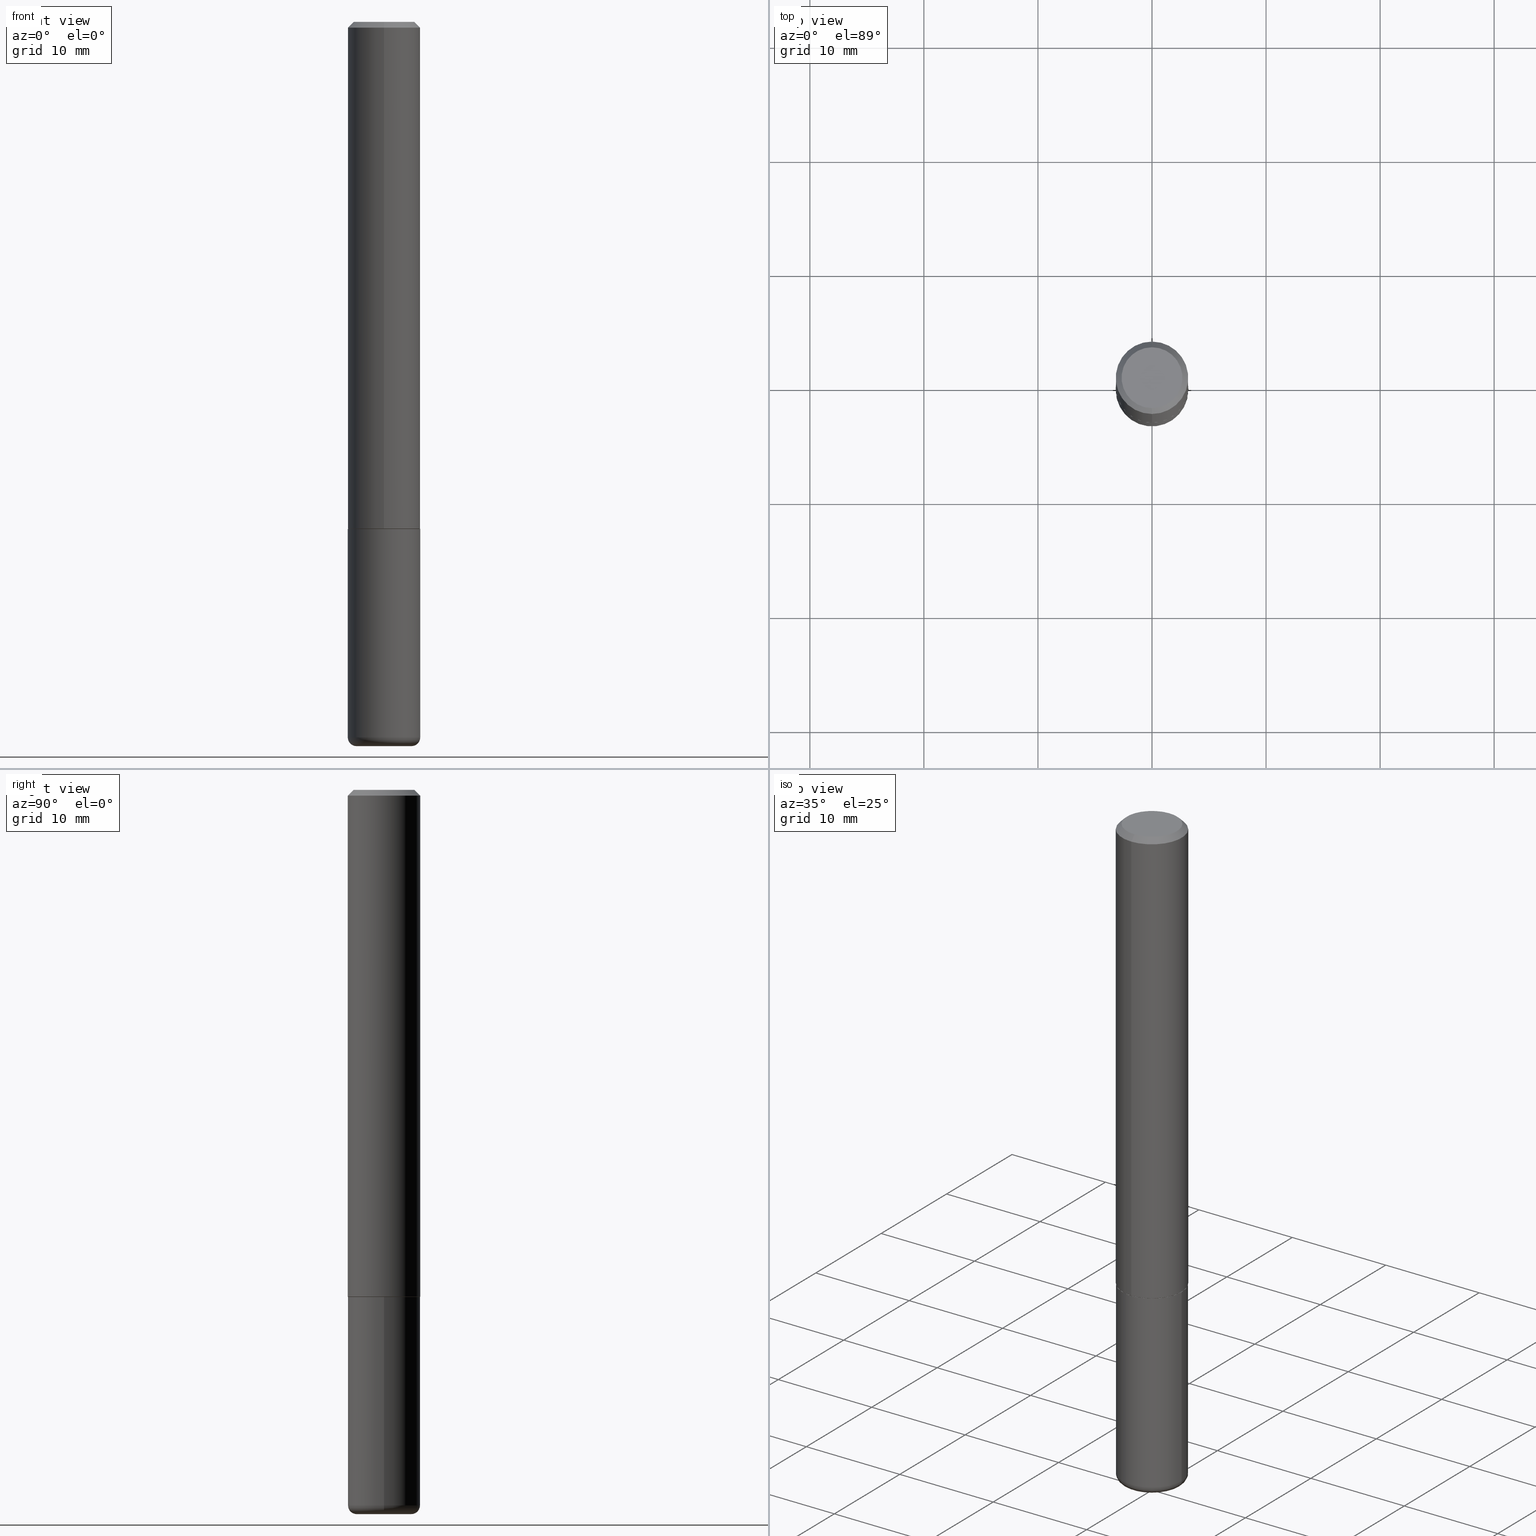
[diagram: canonical four-view strip — front | top / right | iso, engineering-drawing reading convention]
A machine part, canonical four-view strip (front | top / right | iso — engineering-drawing reading convention). The complete STEP part file that produces these views, byte-faithful:
ISO-10303-21;
HEADER;
FILE_DESCRIPTION (( 'STEP AP203' ),
    '1' );
FILE_NAME ('38223.STEP',
    '2024-03-02T18:48:16',
    ( '' ),
    ( '' ),
    'SwSTEP 2.0',
    'SolidWorks 2023',
    '' );
FILE_SCHEMA (( 'CONFIG_CONTROL_DESIGN' ));
ENDSEC;

DATA;
#1 = ADVANCED_FACE ( 'NONE', ( #26 ), #150, .T. ) ;
#2 = CARTESIAN_POINT ( 'NONE',  ( 4.275790926014379252E-29, -6.108511248481041332E-15, -1.749000000000000110 ) ) ;
#3 = DIRECTION ( 'NONE',  ( -2.444706075479919143E-29, 3.492573612624952424E-15, 1.000000000000000000 ) ) ;
#4 = CIRCLE ( 'NONE', #410, 0.1050000000000000794 ) ;
#5 = CC_DESIGN_APPROVAL ( #38, ( #148 ) ) ;
#6 = ORIENTED_EDGE ( 'NONE', *, *, #414, .F. ) ;
#7 = DIRECTION ( 'NONE',  ( -2.445468806185136597E-29, 3.491481338843145583E-15, 1.000000000000000000 ) ) ;
#8 = EDGE_CURVE ( 'NONE', #170, #129, #279, .T. ) ;
#9 = DIRECTION ( 'NONE',  ( 6.982962677686265922E-15, 1.000000000000000000, -3.483106191921935554E-15 ) ) ;
#10 = ORIENTED_EDGE ( 'NONE', *, *, #92, .F. ) ;
#11 = CARTESIAN_POINT ( 'NONE',  ( 8.728703347107837333E-16, 0.1249999999999999306, -0.02000000000000046185 ) ) ;
#12 = ORIENTED_EDGE ( 'NONE', *, *, #227, .F. ) ;
#13 = TOROIDAL_SURFACE ( 'NONE', #300, 0.09499999999999998723, 0.03000000000000025216 ) ;
#14 = AXIS2_PLACEMENT_3D ( 'NONE', #80, #274, #110 ) ;
#15 = COORDINATED_UNIVERSAL_TIME_OFFSET ( 5, 0, .BEHIND. ) ;
#16 = DIRECTION ( 'NONE',  ( 5.024295867788490741E-15, 0.7071067811866103003, 0.7071067811864847341 ) ) ;
#17 = EDGE_CURVE ( 'NONE', #200, #292, #107, .T. ) ;
#18 = VERTEX_POINT ( 'NONE', #120 ) ;
#19 = DIRECTION ( 'NONE',  ( 1.000000000000000000, -6.982962677686262766E-15, 0.000000000000000000 ) ) ;
#20 = DIRECTION ( 'NONE',  ( -2.445468806185136597E-29, 3.491481338843145583E-15, 1.000000000000000000 ) ) ;
#21 = DIRECTION ( 'NONE',  ( -2.444706075479919424E-29, 3.492573612624952424E-15, 1.000000000000000000 ) ) ;
#22 = CARTESIAN_POINT ( 'NONE',  ( -3.926534606047510986E-29, -2.310685068218294639E-14, -2.500000000000000000 ) ) ;
#23 = AXIS2_PLACEMENT_3D ( 'NONE', #82, #209, #103 ) ;
#24 = CIRCLE ( 'NONE', #146, 0.03000000000000024175 ) ;
#25 = DIRECTION ( 'NONE',  ( 6.982962677686265922E-15, 1.000000000000000000, -3.483106191921935554E-15 ) ) ;
#26 = FACE_OUTER_BOUND ( 'NONE', #306, .T. ) ;
#27 = APPROVAL_ROLE ( '' ) ;
#28 = CARTESIAN_POINT ( 'NONE',  ( -0.09499999999999998723, -7.948943307970475008E-15, -2.470000000000000195 ) ) ;
#29 =( NAMED_UNIT ( * ) PLANE_ANGLE_UNIT ( ) SI_UNIT ( $, .RADIAN. ) );
#30 = CC_DESIGN_PERSON_AND_ORGANIZATION_ASSIGNMENT ( #385, #286, ( #275 ) ) ;
#31 = AXIS2_PLACEMENT_3D ( 'NONE', #371, #20, #272 ) ;
#32 = APPLICATION_PROTOCOL_DEFINITION ( 'international standard', 'config_control_design', 1994, #318 ) ;
#33 = LOCAL_TIME ( 13, 48, 16.00000000000000000, #15 ) ;
#34 = DIRECTION ( 'NONE',  ( 0.000000000000000000, 0.000000000000000000, 1.000000000000000000 ) ) ;
#35 = CLOSED_SHELL ( 'NONE', ( #290, #144, #320, #205, #343, #377, #403, #255 ) ) ;
#36 = ORIENTED_EDGE ( 'NONE', *, *, #227, .T. ) ;
#37 = APPROVAL_STATUS ( 'not_yet_approved' ) ;
#38 = APPROVAL ( #37, 'UNSPECIFIED' ) ;
#39 = ORIENTED_EDGE ( 'NONE', *, *, #243, .F. ) ;
#40 = CALENDAR_DATE ( 2024, 2, 3 ) ;
#41 = CARTESIAN_POINT ( 'NONE',  ( -0.1250000000000000000, -6.478847205258913284E-15, -1.750000000000000222 ) ) ;
#42 = AXIS2_PLACEMENT_3D ( 'NONE', #345, #34, #415 ) ;
#43 = CC_DESIGN_SECURITY_CLASSIFICATION ( #148, ( #275 ) ) ;
#44 = EDGE_CURVE ( 'NONE', #296, #18, #56, .T. ) ;
#45 = ORIENTED_EDGE ( 'NONE', *, *, #17, .T. ) ;
#46 = EDGE_LOOP ( 'NONE', ( #10, #113, #76, #136 ) ) ;
#47 = EDGE_LOOP ( 'NONE', ( #338, #52, #12, #78 ) ) ;
#48 = FACE_OUTER_BOUND ( 'NONE', #247, .T. ) ;
#49 = FACE_OUTER_BOUND ( 'NONE', #47, .T. ) ;
#50 = AXIS2_PLACEMENT_3D ( 'NONE', #224, #254, #222 ) ;
#51 = PLANE ( 'NONE',  #356 ) ;
#52 = ORIENTED_EDGE ( 'NONE', *, *, #92, .T. ) ;
#53 = LINE ( 'NONE', #344, #339 ) ;
#54 = ORIENTED_EDGE ( 'NONE', *, *, #307, .T. ) ;
#55 = CARTESIAN_POINT ( 'NONE',  ( 4.889412150959845398E-31, -6.985147225249911602E-17, -0.02000000000000002470 ) ) ;
#56 = CIRCLE ( 'NONE', #31, 0.1250000000000000000 ) ;
#57 = MECHANICAL_CONTEXT ( 'NONE', #81, 'mechanical' ) ;
#58 = DIRECTION ( 'NONE',  ( -2.444706075479919424E-29, 3.492573612624952424E-15, 1.000000000000000000 ) ) ;
#59 = DIRECTION ( 'NONE',  ( -2.444706075479919424E-29, 3.492573612624952424E-15, 1.000000000000000000 ) ) ;
#60 = FACE_OUTER_BOUND ( 'NONE', #347, .T. ) ;
#61 = AXIS2_PLACEMENT_3D ( 'NONE', #241, #178, #207 ) ;
#62 = APPROVAL_ROLE ( '' ) ;
#63 = FACE_OUTER_BOUND ( 'NONE', #85, .T. ) ;
#64 = CARTESIAN_POINT ( 'NONE',  ( -8.658873720330540358E-16, -0.1240000000000061053, -1.749999999999999556 ) ) ;
#65 = LOCAL_TIME ( 13, 48, 16.00000000000000000, #186 ) ;
#66 = FACE_OUTER_BOUND ( 'NONE', #46, .T. ) ;
#67 = ORIENTED_EDGE ( 'NONE', *, *, #358, .F. ) ;
#68 =( NAMED_UNIT ( * ) SI_UNIT ( $, .STERADIAN. ) SOLID_ANGLE_UNIT ( ) );
#69 = CARTESIAN_POINT ( 'NONE',  ( 6.113672015462842613E-29, -8.728703347107866520E-15, -2.500000000000000444 ) ) ;
#70 = EDGE_LOOP ( 'NONE', ( #211, #39, #362, #396 ) ) ;
#71 = DIRECTION ( 'NONE',  ( 1.000000000000000000, -6.982962677686273021E-15, 0.000000000000000000 ) ) ;
#72 = PERSON_AND_ORGANIZATION ( #206, #223 ) ;
#73 = FACE_OUTER_BOUND ( 'NONE', #70, .T. ) ;
#74 = CC_DESIGN_PERSON_AND_ORGANIZATION_ASSIGNMENT ( #253, #125, ( #400 ) ) ;
#75 = CIRCLE ( 'NONE', #124, 0.1250000000000000000 ) ;
#76 = ORIENTED_EDGE ( 'NONE', *, *, #171, .T. ) ;
#77 = DIRECTION ( 'NONE',  ( -6.982962677686265133E-15, -1.000000000000000000, 4.370956789862812472E-15 ) ) ;
#78 = ORIENTED_EDGE ( 'NONE', *, *, #171, .F. ) ;
#79 = DIRECTION ( 'NONE',  ( 7.105427357601001859E-15, 1.000000000000000000, -3.491481338843145583E-15 ) ) ;
#80 = CARTESIAN_POINT ( 'NONE',  ( 0.000000000000000000, 0.000000000000000000, 0.000000000000000000 ) ) ;
#81 = APPLICATION_CONTEXT ( 'configuration controlled 3d designs of mechanical parts and assemblies' ) ;
#82 = CARTESIAN_POINT ( 'NONE',  ( 6.040307951277287977E-29, -8.623958906942569995E-15, -2.470000000000000195 ) ) ;
#83 = CIRCLE ( 'NONE', #260, 0.1250000000000000000 ) ;
#84 = CYLINDRICAL_SURFACE ( 'NONE', #216, 0.1250000000000000000 ) ;
#85 = EDGE_LOOP ( 'NONE', ( #232, #45, #54, #386 ) ) ;
#86 = CARTESIAN_POINT ( 'NONE',  ( -8.658873720330540358E-16, -0.1240000000000061053, -1.749999999999999556 ) ) ;
#87 = DIRECTION ( 'NONE',  ( -6.982962677686265922E-15, -1.000000000000000000, 3.483106191921935554E-15 ) ) ;
#88 = DIRECTION ( 'NONE',  ( -4.851104656540959542E-15, -0.7071067811865493491, -0.7071067811865457964 ) ) ;
#89 = AXIS2_PLACEMENT_3D ( 'NONE', #236, #355, #195 ) ;
#90 = APPROVAL_PERSON_ORGANIZATION ( #220, #218, #62 ) ;
#91 = PERSON_AND_ORGANIZATION ( #206, #223 ) ;
#92 = EDGE_CURVE ( 'NONE', #401, #296, #24, .T. ) ;
#93 = DATE_AND_TIME ( #283, #270 ) ;
#94 = CALENDAR_DATE ( 2024, 2, 3 ) ;
#95 = DIRECTION ( 'NONE',  ( -2.444706075479919424E-29, 3.492573612624952424E-15, 1.000000000000000000 ) ) ;
#96 = AXIS2_PLACEMENT_3D ( 'NONE', #314, #95, #219 ) ;
#97 = DIRECTION ( 'NONE',  ( -2.445468806185136877E-29, 3.491481338843145188E-15, 1.000000000000000000 ) ) ;
#98 = ADVANCED_FACE ( 'NONE', ( #49 ), #181, .T. ) ;
#99 = ADVANCED_BREP_SHAPE_REPRESENTATION ( '38223', ( #245, #248, #42 ), #309 ) ;
#100 = DIRECTION ( 'NONE',  ( 1.000000000000000000, -6.982962677686276966E-15, 0.000000000000000000 ) ) ;
#101 = CC_DESIGN_APPROVAL ( #225, ( #400 ) ) ;
#102 = UNCERTAINTY_MEASURE_WITH_UNIT (LENGTH_MEASURE( 1.000000000000000082E-05 ), #325, 'distance_accuracy_value', 'NONE');
#103 = DIRECTION ( 'NONE',  ( 1.000000000000000000, -6.982962677686273021E-15, 4.883557194083115143E-29 ) ) ;
#104 = VERTEX_POINT ( 'NONE', #242 ) ;
#105 = CARTESIAN_POINT ( 'NONE',  ( 8.881784197001479121E-16, 0.1249999999999941019, -1.749000000000000554 ) ) ;
#106 = ORIENTED_EDGE ( 'NONE', *, *, #366, .F. ) ;
#107 = CIRCLE ( 'NONE', #158, 0.1250000000000002498 ) ;
#108 = CONICAL_SURFACE ( 'NONE', #174, 0.1239999999999999991, 0.7853981633975336552 ) ;
#109 = ORIENTED_EDGE ( 'NONE', *, *, #382, .T. ) ;
#110 = DIRECTION ( 'NONE',  ( 1.000000000000000000, -6.982962677686266711E-15, 4.876176775795935793E-29 ) ) ;
#111 = CC_DESIGN_DATE_AND_TIME_ASSIGNMENT ( #289, #262, ( #148 ) ) ;
#112 = ORIENTED_EDGE ( 'NONE', *, *, #277, .F. ) ;
#113 = ORIENTED_EDGE ( 'NONE', *, *, #118, .T. ) ;
#114 = PLANE ( 'NONE',  #61 ) ;
#115 = DIRECTION ( 'NONE',  ( -1.000000000000000000, 6.982962677686265922E-15, -4.876176775795935793E-29 ) ) ;
#116 = FACE_OUTER_BOUND ( 'NONE', #163, .T. ) ;
#117 = AXIS2_PLACEMENT_3D ( 'NONE', #409, #349, #217 ) ;
#118 = EDGE_CURVE ( 'NONE', #401, #137, #259, .T. ) ;
#119 = LINE ( 'NONE', #304, #316 ) ;
#120 = CARTESIAN_POINT ( 'NONE',  ( 0.1250000000000001110, -9.496829241653354912E-15, -2.470000000000000195 ) ) ;
#121 = DIRECTION ( 'NONE',  ( -2.445468806185136597E-29, 3.491481338843145583E-15, 1.000000000000000000 ) ) ;
#122 = DATE_AND_TIME ( #94, #282 ) ;
#123 = VECTOR ( 'NONE', #3, 39.37007874015748143 ) ;
#124 = AXIS2_PLACEMENT_3D ( 'NONE', #249, #298, #173 ) ;
#125 = PERSON_AND_ORGANIZATION_ROLE ( 'creator' ) ;
#126 = DIRECTION ( 'NONE',  ( -6.982962677686265922E-15, -1.000000000000000000, 3.492573612624952424E-15 ) ) ;
#127 = DESIGN_CONTEXT ( 'detailed design', #318, 'design' ) ;
#128 = CIRCLE ( 'NONE', #363, 0.1250000000000002498 ) ;
#129 = VERTEX_POINT ( 'NONE', #164 ) ;
#130 = CYLINDRICAL_SURFACE ( 'NONE', #89, 0.1250000000000001110 ) ;
#131 = CARTESIAN_POINT ( 'NONE',  ( 0.09499999999999998723, -9.287340361322766595E-15, -2.470000000000000195 ) ) ;
#132 = EDGE_CURVE ( 'NONE', #292, #200, #128, .T. ) ;
#133 = CIRCLE ( 'NONE', #208, 0.1250000000000000000 ) ;
#134 = ORIENTED_EDGE ( 'NONE', *, *, #240, .F. ) ;
#135 = ORIENTED_EDGE ( 'NONE', *, *, #157, .F. ) ;
#136 = ORIENTED_EDGE ( 'NONE', *, *, #44, .F. ) ;
#137 = VERTEX_POINT ( 'NONE', #267 ) ;
#138 = AXIS2_PLACEMENT_3D ( 'NONE', #228, #7, #169 ) ;
#139 = DIRECTION ( 'NONE',  ( 2.444706075479919143E-29, -3.492573612624952424E-15, -1.000000000000000000 ) ) ;
#140 = DIRECTION ( 'NONE',  ( -2.445468806185136597E-29, 3.491481338843145583E-15, 1.000000000000000000 ) ) ;
#141 = CARTESIAN_POINT ( 'NONE',  ( -8.575622497214408537E-16, -0.1250000000000000555, -0.01999999999999959102 ) ) ;
#142 = DATE_AND_TIME ( #370, #33 ) ;
#143 = DIRECTION ( 'NONE',  ( -2.444706075479919143E-29, 3.492573612624952424E-15, 1.000000000000000000 ) ) ;
#144 = ADVANCED_FACE ( 'NONE', ( #395 ), #130, .T. ) ;
#145 = DIRECTION ( 'NONE',  ( -6.982962677686265133E-15, -1.000000000000000000, 3.492573612624952029E-15 ) ) ;
#146 = AXIS2_PLACEMENT_3D ( 'NONE', #28, #79, #204 ) ;
#147 = AXIS2_PLACEMENT_3D ( 'NONE', #187, #416, #126 ) ;
#148 = SECURITY_CLASSIFICATION ( '', '', #417 ) ;
#149 = CARTESIAN_POINT ( 'NONE',  ( 4.278235632089859061E-29, -6.112003822093666840E-15, -1.750000000000000222 ) ) ;
#150 = PLANE ( 'NONE',  #399 ) ;
#151 = ORIENTED_EDGE ( 'NONE', *, *, #261, .T. ) ;
#152 = CC_DESIGN_DATE_AND_TIME_ASSIGNMENT ( #93, #412, ( #400 ) ) ;
#153 = CIRCLE ( 'NONE', #117, 0.1239999999999999991 ) ;
#154 = APPROVAL_DATE_TIME ( #122, #225 ) ;
#155 = DIRECTION ( 'NONE',  ( -6.982962677686265922E-15, -1.000000000000000000, 4.406206441393973340E-15 ) ) ;
#156 = CALENDAR_DATE ( 2024, 2, 3 ) ;
#157 = EDGE_CURVE ( 'NONE', #296, #175, #197, .T. ) ;
#158 = AXIS2_PLACEMENT_3D ( 'NONE', #215, #59, #312 ) ;
#159 = ORIENTED_EDGE ( 'NONE', *, *, #161, .F. ) ;
#160 = PERSON_AND_ORGANIZATION_ROLE ( 'classification_officer' ) ;
#161 = EDGE_CURVE ( 'NONE', #137, #401, #214, .T. ) ;
#162 = DIRECTION ( 'NONE',  ( -2.445468806185136597E-29, 3.491481338843145583E-15, 1.000000000000000000 ) ) ;
#163 = EDGE_LOOP ( 'NONE', ( #109, #203, #266, #6 ) ) ;
#164 = CARTESIAN_POINT ( 'NONE',  ( -8.575622497214408537E-16, -0.1250000000000000555, -0.01999999999999959102 ) ) ;
#165 = ORIENTED_EDGE ( 'NONE', *, *, #358, .T. ) ;
#166 = CIRCLE ( 'NONE', #331, 0.1239999999999999991 ) ;
#167 = ORIENTED_EDGE ( 'NONE', *, *, #261, .F. ) ;
#168 = ORIENTED_EDGE ( 'NONE', *, *, #307, .F. ) ;
#169 = DIRECTION ( 'NONE',  ( 1.000000000000000000, -6.982962677686273021E-15, 0.000000000000000000 ) ) ;
#170 = VERTEX_POINT ( 'NONE', #387 ) ;
#171 = EDGE_CURVE ( 'NONE', #137, #18, #378, .T. ) ;
#172 = ORIENTED_EDGE ( 'NONE', *, *, #132, .T. ) ;
#173 = DIRECTION ( 'NONE',  ( 1.000000000000000000, -6.982962677686270655E-15, 0.000000000000000000 ) ) ;
#174 = AXIS2_PLACEMENT_3D ( 'NONE', #149, #271, #402 ) ;
#175 = VERTEX_POINT ( 'NONE', #41 ) ;
#176 =( LENGTH_UNIT ( ) NAMED_UNIT ( * ) SI_UNIT ( $, .METRE. ) );
#177 = FACE_OUTER_BOUND ( 'NONE', #196, .T. ) ;
#178 = DIRECTION ( 'NONE',  ( 2.438088387897960049E-29, -3.491481338843145188E-15, -1.000000000000000000 ) ) ;
#179 = ORIENTED_EDGE ( 'NONE', *, *, #202, .T. ) ;
#180 = FACE_OUTER_BOUND ( 'NONE', #357, .T. ) ;
#181 = TOROIDAL_SURFACE ( 'NONE', #23, 0.09499999999999998723, 0.03000000000000025216 ) ;
#182 = CARTESIAN_POINT ( 'NONE',  ( 4.279570410823989044E-29, -6.110092342975505460E-15, -1.750000000000000222 ) ) ;
#183 = CC_DESIGN_PERSON_AND_ORGANIZATION_ASSIGNMENT ( #72, #190, ( #275 ) ) ;
#184 = CARTESIAN_POINT ( 'NONE',  ( 8.846257060213681156E-16, 0.1239999999999938790, -1.750000000000000666 ) ) ;
#185 = CARTESIAN_POINT ( 'NONE',  ( 4.278235632089859061E-29, -6.112003822093666840E-15, -1.750000000000000222 ) ) ;
#186 = COORDINATED_UNIVERSAL_TIME_OFFSET ( 5, 0, .BEHIND. ) ;
#187 = CARTESIAN_POINT ( 'NONE',  ( 4.278235632089859061E-29, -6.112003822093666840E-15, -1.750000000000000222 ) ) ;
#188 = ADVANCED_FACE ( 'NONE', ( #66 ), #13, .T. ) ;
#189 = PERSON_AND_ORGANIZATION ( #206, #223 ) ;
#190 = PERSON_AND_ORGANIZATION_ROLE ( 'creator' ) ;
#191 = LENGTH_MEASURE_WITH_UNIT ( LENGTH_MEASURE( 0.02539999999999999897 ), #176 );
#192 = AXIS2_PLACEMENT_3D ( 'NONE', #131, #327, #100 ) ;
#193 = AXIS2_PLACEMENT_3D ( 'NONE', #305, #310, #25 ) ;
#194 = COORDINATED_UNIVERSAL_TIME_OFFSET ( 5, 0, .BEHIND. ) ;
#195 = DIRECTION ( 'NONE',  ( -6.982962677686266711E-15, -1.000000000000000000, 3.492573612624952818E-15 ) ) ;
#196 = EDGE_LOOP ( 'NONE', ( #397, #198 ) ) ;
#197 = LINE ( 'NONE', #359, #323 ) ;
#198 = ORIENTED_EDGE ( 'NONE', *, *, #335, .T. ) ;
#199 = VECTOR ( 'NONE', #287, 39.37007874015748143 ) ;
#200 = VERTEX_POINT ( 'NONE', #105 ) ;
#201 = CARTESIAN_POINT ( 'NONE',  ( 4.889412150959845398E-31, -6.985147225249911602E-17, -0.02000000000000002470 ) ) ;
#202 = EDGE_CURVE ( 'NONE', #200, #231, #233, .T. ) ;
#203 = ORIENTED_EDGE ( 'NONE', *, *, #265, .T. ) ;
#204 = DIRECTION ( 'NONE',  ( -1.000000000000000000, 7.105427357600998703E-15, 0.000000000000000000 ) ) ;
#205 = ADVANCED_FACE ( 'NONE', ( #73 ), #364, .T. ) ;
#206 = PERSON ( 'UNSPECIFIED', 'UNSPECIFIED', 'UNSPECIFIED', ('UNSPECIFIED'), ('UNSPECIFIED'), ('UNSPECIFIED') ) ;
#207 = DIRECTION ( 'NONE',  ( -1.000000000000000000, 6.982962677686265922E-15, -4.876176775795935793E-29 ) ) ;
#208 = AXIS2_PLACEMENT_3D ( 'NONE', #212, #140, #19 ) ;
#209 = DIRECTION ( 'NONE',  ( -2.445468806185136597E-29, 3.491481338843145583E-15, 1.000000000000000000 ) ) ;
#210 = LINE ( 'NONE', #239, #244 ) ;
#211 = ORIENTED_EDGE ( 'NONE', *, *, #8, .F. ) ;
#212 = CARTESIAN_POINT ( 'NONE',  ( 4.279570410823989044E-29, -6.110092342975505460E-15, -1.750000000000000222 ) ) ;
#213 = CARTESIAN_POINT ( 'NONE',  ( 7.332110811570584188E-16, 0.1050000000000000794, -3.986767286278284697E-16 ) ) ;
#214 = CIRCLE ( 'NONE', #138, 0.09499999999999998723 ) ;
#215 = CARTESIAN_POINT ( 'NONE',  ( 4.275790926014379252E-29, -6.108511248481041332E-15, -1.749000000000000110 ) ) ;
#216 = AXIS2_PLACEMENT_3D ( 'NONE', #278, #121, #408 ) ;
#217 = DIRECTION ( 'NONE',  ( -6.982962677686265922E-15, -1.000000000000000000, 4.406206441393973340E-15 ) ) ;
#218 = APPROVAL ( #350, 'UNSPECIFIED' ) ;
#219 = DIRECTION ( 'NONE',  ( -6.982962677686266711E-15, -1.000000000000000000, 3.492573612624952818E-15 ) ) ;
#220 = PERSON_AND_ORGANIZATION ( #206, #223 ) ;
#221 = ADVANCED_FACE ( 'NONE', ( #398 ), #365, .T. ) ;
#222 = DIRECTION ( 'NONE',  ( -6.982962677686265922E-15, -1.000000000000000000, 4.406206441393973340E-15 ) ) ;
#223 = ORGANIZATION ( 'UNSPECIFIED', 'UNSPECIFIED', '' ) ;
#224 = CARTESIAN_POINT ( 'NONE',  ( 4.278235632089859061E-29, -6.112003822093666840E-15, -1.750000000000000222 ) ) ;
#225 = APPROVAL ( #353, 'UNSPECIFIED' ) ;
#226 = VERTEX_POINT ( 'NONE', #86 ) ;
#227 = EDGE_CURVE ( 'NONE', #18, #296, #75, .T. ) ;
#228 = CARTESIAN_POINT ( 'NONE',  ( 6.113672015462842613E-29, -8.728703347107866520E-15, -2.500000000000000444 ) ) ;
#229 = APPROVAL_ROLE ( '' ) ;
#230 = DIRECTION ( 'NONE',  ( -2.445468806185136597E-29, 3.491481338843145583E-15, 1.000000000000000000 ) ) ;
#231 = VERTEX_POINT ( 'NONE', #11 ) ;
#232 = ORIENTED_EDGE ( 'NONE', *, *, #202, .F. ) ;
#233 = LINE ( 'NONE', #361, #123 ) ;
#234 = VERTEX_POINT ( 'NONE', #276 ) ;
#235 = CIRCLE ( 'NONE', #263, 0.1050000000000000794 ) ;
#236 = CARTESIAN_POINT ( 'NONE',  ( 0.000000000000000000, 0.000000000000000000, 0.000000000000000000 ) ) ;
#237 = VECTOR ( 'NONE', #88, 39.37007874015748143 ) ;
#238 = ORIENTED_EDGE ( 'NONE', *, *, #44, .T. ) ;
#239 = CARTESIAN_POINT ( 'NONE',  ( 8.728703347107837333E-16, 0.1249999999999999306, -0.02000000000000046185 ) ) ;
#240 = EDGE_CURVE ( 'NONE', #234, #231, #210, .T. ) ;
#241 = CARTESIAN_POINT ( 'NONE',  ( 4.279570410823989044E-29, -6.110092342975505460E-15, -1.750000000000000222 ) ) ;
#242 = CARTESIAN_POINT ( 'NONE',  ( 0.1250000000000000000, -6.982962677686288010E-15, -1.750000000000000222 ) ) ;
#243 = EDGE_CURVE ( 'NONE', #234, #170, #235, .T. ) ;
#244 = VECTOR ( 'NONE', #368, 39.37007874015748143 ) ;
#245 = MANIFOLD_SOLID_BREP ( 'Body-Move/Copy2[1]', #269 ) ;
#246 = DIRECTION ( 'NONE',  ( -2.444706075479919424E-29, 3.492573612624952424E-15, 1.000000000000000000 ) ) ;
#247 = EDGE_LOOP ( 'NONE', ( #393, #151 ) ) ;
#248 = MANIFOLD_SOLID_BREP ( 'Body-Move/Copy2[2]', #35 ) ;
#249 = CARTESIAN_POINT ( 'NONE',  ( 6.040307951277287977E-29, -8.623958906942569995E-15, -2.470000000000000195 ) ) ;
#250 = EDGE_CURVE ( 'NONE', #231, #129, #83, .T. ) ;
#251 = ORIENTED_EDGE ( 'NONE', *, *, #335, .F. ) ;
#252 = APPROVAL_PERSON_ORGANIZATION ( #189, #225, #27 ) ;
#253 = PERSON_AND_ORGANIZATION ( #206, #223 ) ;
#254 = DIRECTION ( 'NONE',  ( -2.444706075479919424E-29, 3.492573612624952424E-15, 1.000000000000000000 ) ) ;
#255 = ADVANCED_FACE ( 'NONE', ( #48 ), #51, .F. ) ;
#256 = DIRECTION ( 'NONE',  ( 1.000000000000000000, -6.982962677686262766E-15, 0.000000000000000000 ) ) ;
#257 = APPROVAL_DATE_TIME ( #285, #218 ) ;
#258 = CARTESIAN_POINT ( 'NONE',  ( 0.1250000000000000000, -8.728703347107833388E-16, 6.095220969744919741E-30 ) ) ;
#259 = CIRCLE ( 'NONE', #308, 0.09499999999999998723 ) ;
#260 = AXIS2_PLACEMENT_3D ( 'NONE', #374, #21, #87 ) ;
#261 = EDGE_CURVE ( 'NONE', #170, #234, #4, .T. ) ;
#262 = DATE_TIME_ROLE ( 'classification_date' ) ;
#263 = AXIS2_PLACEMENT_3D ( 'NONE', #336, #58, #375 ) ;
#264 = ORIENTED_EDGE ( 'NONE', *, *, #17, .F. ) ;
#265 = EDGE_CURVE ( 'NONE', #360, #200, #119, .T. ) ;
#266 = ORIENTED_EDGE ( 'NONE', *, *, #132, .F. ) ;
#267 = CARTESIAN_POINT ( 'NONE',  ( 0.09499999999999998723, -9.392084801488061542E-15, -2.500000000000000444 ) ) ;
#268 = ORIENTED_EDGE ( 'NONE', *, *, #118, .F. ) ;
#269 = CLOSED_SHELL ( 'NONE', ( #221, #98, #297, #291, #188, #1 ) ) ;
#270 = LOCAL_TIME ( 13, 48, 16.00000000000000000, #380 ) ;
#271 = DIRECTION ( 'NONE',  ( -2.444706075479919424E-29, 3.492573612624952424E-15, 1.000000000000000000 ) ) ;
#272 = DIRECTION ( 'NONE',  ( 1.000000000000000000, -6.982962677686270655E-15, 0.000000000000000000 ) ) ;
#273 = APPROVAL_DATE_TIME ( #142, #38 ) ;
#274 = DIRECTION ( 'NONE',  ( -2.445468806185136597E-29, 3.491481338843145583E-15, 1.000000000000000000 ) ) ;
#275 = PRODUCT_DEFINITION_FORMATION_WITH_SPECIFIED_SOURCE ( 'ANY', '', #332, .NOT_KNOWN. ) ;
#276 = CARTESIAN_POINT ( 'NONE',  ( 8.030407079339210267E-16, 0.1050000000000000794, -4.306332279300366944E-16 ) ) ;
#277 = EDGE_CURVE ( 'NONE', #104, #175, #133, .T. ) ;
#278 = CARTESIAN_POINT ( 'NONE',  ( 0.000000000000000000, 0.000000000000000000, 0.000000000000000000 ) ) ;
#279 = LINE ( 'NONE', #141, #237 ) ;
#280 = COORDINATED_UNIVERSAL_TIME_OFFSET ( 5, 0, .BEHIND. ) ;
#281 = EDGE_LOOP ( 'NONE', ( #36, #390, #112, #106 ) ) ;
#282 = LOCAL_TIME ( 13, 48, 16.00000000000000000, #280 ) ;
#283 = CALENDAR_DATE ( 2024, 2, 3 ) ;
#284 = CARTESIAN_POINT ( 'NONE',  ( -0.09499999999999998723, -7.894734117689107359E-15, -2.500000000000000444 ) ) ;
#285 = DATE_AND_TIME ( #156, #65 ) ;
#286 = PERSON_AND_ORGANIZATION_ROLE ( 'design_supplier' ) ;
#287 = DIRECTION ( 'NONE',  ( -4.937700262164969294E-15, -0.7071067811866054154, 0.7071067811864896191 ) ) ;
#288 = AXIS2_PLACEMENT_3D ( 'NONE', #55, #246, #373 ) ;
#289 = DATE_AND_TIME ( #40, #317 ) ;
#290 = ADVANCED_FACE ( 'NONE', ( #116 ), #108, .T. ) ;
#291 = ADVANCED_FACE ( 'NONE', ( #405 ), #84, .T. ) ;
#292 = VERTEX_POINT ( 'NONE', #340 ) ;
#293 = AXIS2_PLACEMENT_3D ( 'NONE', #182, #383, #256 ) ;
#294 = EDGE_LOOP ( 'NONE', ( #172, #179, #341, #168 ) ) ;
#295 = CARTESIAN_POINT ( 'NONE',  ( 6.040307951277287977E-29, -8.623958906942569995E-15, -2.470000000000000195 ) ) ;
#296 = VERTEX_POINT ( 'NONE', #346 ) ;
#297 = ADVANCED_FACE ( 'NONE', ( #177 ), #114, .F. ) ;
#298 = DIRECTION ( 'NONE',  ( -2.445468806185136597E-29, 3.491481338843145583E-15, 1.000000000000000000 ) ) ;
#299 = ORIENTED_EDGE ( 'NONE', *, *, #313, .T. ) ;
#300 = AXIS2_PLACEMENT_3D ( 'NONE', #295, #162, #388 ) ;
#301 = CC_DESIGN_APPROVAL ( #218, ( #275 ) ) ;
#302 = PRODUCT_RELATED_PRODUCT_CATEGORY ( 'detail', '', ( #332 ) ) ;
#303 = DIRECTION ( 'NONE',  ( 6.982962677686265922E-15, 1.000000000000000000, -3.492573612624952424E-15 ) ) ;
#304 = CARTESIAN_POINT ( 'NONE',  ( 8.810729923425669213E-16, 0.1239999999999938790, -1.750000000000000666 ) ) ;
#305 = CARTESIAN_POINT ( 'NONE',  ( 4.889412150959845398E-31, -6.985147225249911602E-17, -0.02000000000000002470 ) ) ;
#306 = EDGE_LOOP ( 'NONE', ( #159, #268 ) ) ;
#307 = EDGE_CURVE ( 'NONE', #292, #129, #53, .T. ) ;
#308 = AXIS2_PLACEMENT_3D ( 'NONE', #69, #230, #71 ) ;
#309 =( GEOMETRIC_REPRESENTATION_CONTEXT ( 3 ) GLOBAL_UNCERTAINTY_ASSIGNED_CONTEXT ( ( #102 ) ) GLOBAL_UNIT_ASSIGNED_CONTEXT ( ( #325, #29, #68 ) ) REPRESENTATION_CONTEXT ( 'NONE', 'WORKASPACE' ) );
#310 = DIRECTION ( 'NONE',  ( 2.444706075479919424E-29, -3.492573612624952424E-15, -1.000000000000000000 ) ) ;
#311 = ORIENTED_EDGE ( 'NONE', *, *, #414, .T. ) ;
#312 = DIRECTION ( 'NONE',  ( -6.982962677686265133E-15, -1.000000000000000000, 4.370956789862812472E-15 ) ) ;
#313 = EDGE_CURVE ( 'NONE', #129, #231, #418, .T. ) ;
#314 = CARTESIAN_POINT ( 'NONE',  ( 0.000000000000000000, 0.000000000000000000, 0.000000000000000000 ) ) ;
#315 = DIRECTION ( 'NONE',  ( -2.444706075479919424E-29, 3.492573612624952424E-15, 1.000000000000000000 ) ) ;
#316 = VECTOR ( 'NONE', #16, 39.37007874015748143 ) ;
#317 = LOCAL_TIME ( 13, 48, 16.00000000000000000, #194 ) ;
#318 = APPLICATION_CONTEXT ( 'configuration controlled 3d designs of mechanical parts and assemblies' ) ;
#319 = PERSON_AND_ORGANIZATION_ROLE ( 'design_owner' ) ;
#320 = ADVANCED_FACE ( 'NONE', ( #180 ), #384, .T. ) ;
#321 = PERSON_AND_ORGANIZATION ( #206, #223 ) ;
#322 = ORIENTED_EDGE ( 'NONE', *, *, #366, .T. ) ;
#323 = VECTOR ( 'NONE', #329, 39.37007874015748143 ) ;
#324 = CIRCLE ( 'NONE', #293, 0.1250000000000000000 ) ;
#325 =( CONVERSION_BASED_UNIT ( 'INCH', #191 ) LENGTH_UNIT ( ) NAMED_UNIT ( #337 ) );
#326 = PERSON_AND_ORGANIZATION ( #206, #223 ) ;
#327 = DIRECTION ( 'NONE',  ( -6.982962677686266711E-15, -1.000000000000000000, 3.491481338843145583E-15 ) ) ;
#328 = EDGE_LOOP ( 'NONE', ( #394, #67 ) ) ;
#329 = DIRECTION ( 'NONE',  ( -2.445468806185136877E-29, 3.491481338843145188E-15, 1.000000000000000000 ) ) ;
#330 = ORIENTED_EDGE ( 'NONE', *, *, #8, .T. ) ;
#331 = AXIS2_PLACEMENT_3D ( 'NONE', #185, #315, #155 ) ;
#332 = PRODUCT ( '38223', '38223', '', ( #57 ) ) ;
#333 = DIRECTION ( 'NONE',  ( 2.444706075479919424E-29, -3.492573612624952424E-15, -1.000000000000000000 ) ) ;
#334 = DIRECTION ( 'NONE',  ( -2.444706075479919424E-29, 3.492573612624952424E-15, 1.000000000000000000 ) ) ;
#335 = EDGE_CURVE ( 'NONE', #175, #104, #324, .T. ) ;
#336 = CARTESIAN_POINT ( 'NONE',  ( 1.562484959903565573E-45, -2.232208524295203650E-31, -6.391299860441647393E-17 ) ) ;
#337 = DIMENSIONAL_EXPONENTS ( 1.000000000000000000, 0.000000000000000000, 0.000000000000000000, 0.000000000000000000, 0.000000000000000000, 0.000000000000000000, 0.000000000000000000 ) ;
#338 = ORIENTED_EDGE ( 'NONE', *, *, #161, .T. ) ;
#339 = VECTOR ( 'NONE', #143, 39.37007874015748143 ) ;
#340 = CARTESIAN_POINT ( 'NONE',  ( -8.728703347107422194E-16, -0.1250000000000063560, -1.748999999999999666 ) ) ;
#341 = ORIENTED_EDGE ( 'NONE', *, *, #313, .F. ) ;
#342 = DIRECTION ( 'NONE',  ( -2.444706075479919424E-29, 3.492573612624952424E-15, 1.000000000000000000 ) ) ;
#343 = ADVANCED_FACE ( 'NONE', ( #63 ), #381, .T. ) ;
#344 = CARTESIAN_POINT ( 'NONE',  ( -8.728703347107841277E-16, -0.1250000000000001110, 4.365717015781194967E-16 ) ) ;
#345 = CARTESIAN_POINT ( 'NONE',  ( 0.000000000000000000, 0.000000000000000000, 0.000000000000000000 ) ) ;
#346 = CARTESIAN_POINT ( 'NONE',  ( -0.1250000000000001110, -7.735780487242444763E-15, -2.470000000000000195 ) ) ;
#347 = EDGE_LOOP ( 'NONE', ( #376, #165, #311, #264 ) ) ;
#348 = CC_DESIGN_PERSON_AND_ORGANIZATION_ASSIGNMENT ( #91, #319, ( #332 ) ) ;
#349 = DIRECTION ( 'NONE',  ( -2.444706075479919424E-29, 3.492573612624952424E-15, 1.000000000000000000 ) ) ;
#350 = APPROVAL_STATUS ( 'not_yet_approved' ) ;
#351 = PLANE ( 'NONE',  #147 ) ;
#352 = VECTOR ( 'NONE', #97, 39.37007874015748143 ) ;
#353 = APPROVAL_STATUS ( 'not_yet_approved' ) ;
#354 = LINE ( 'NONE', #64, #199 ) ;
#355 = DIRECTION ( 'NONE',  ( -2.444706075479919424E-29, 3.492573612624952424E-15, 1.000000000000000000 ) ) ;
#356 = AXIS2_PLACEMENT_3D ( 'NONE', #213, #139, #303 ) ;
#357 = EDGE_LOOP ( 'NONE', ( #167, #330, #299, #134 ) ) ;
#358 = EDGE_CURVE ( 'NONE', #360, #226, #153, .T. ) ;
#359 = CARTESIAN_POINT ( 'NONE',  ( -0.1250000000000000000, 8.881784197001252323E-16, -6.148668862818632227E-30 ) ) ;
#360 = VERTEX_POINT ( 'NONE', #184 ) ;
#361 = CARTESIAN_POINT ( 'NONE',  ( 8.881784197001260212E-16, 0.1250000000000001110, -4.365717015781194967E-16 ) ) ;
#362 = ORIENTED_EDGE ( 'NONE', *, *, #240, .T. ) ;
#363 = AXIS2_PLACEMENT_3D ( 'NONE', #2, #334, #77 ) ;
#364 = CONICAL_SURFACE ( 'NONE', #389, 0.1250000000000000000, 0.7853981633974473908 ) ;
#365 = CYLINDRICAL_SURFACE ( 'NONE', #14, 0.1250000000000000000 ) ;
#366 = EDGE_CURVE ( 'NONE', #18, #104, #411, .T. ) ;
#367 = EDGE_LOOP ( 'NONE', ( #135, #238, #322, #251 ) ) ;
#368 = DIRECTION ( 'NONE',  ( 4.937700262164543309E-15, 0.7071067811865444641, -0.7071067811865506814 ) ) ;
#369 = CC_DESIGN_PERSON_AND_ORGANIZATION_ASSIGNMENT ( #321, #160, ( #148 ) ) ;
#370 = CALENDAR_DATE ( 2024, 2, 3 ) ;
#371 = CARTESIAN_POINT ( 'NONE',  ( 6.040307951277287977E-29, -8.623958906942569995E-15, -2.470000000000000195 ) ) ;
#372 = APPLICATION_PROTOCOL_DEFINITION ( 'international standard', 'config_control_design', 1994, #81 ) ;
#373 = DIRECTION ( 'NONE',  ( -6.982962677686265922E-15, -1.000000000000000000, 3.483106191921935554E-15 ) ) ;
#374 = CARTESIAN_POINT ( 'NONE',  ( 4.889412150959845398E-31, -6.985147225249911602E-17, -0.02000000000000002470 ) ) ;
#375 = DIRECTION ( 'NONE',  ( -6.982962677686265133E-15, -1.000000000000000000, 3.492573612624952029E-15 ) ) ;
#376 = ORIENTED_EDGE ( 'NONE', *, *, #265, .F. ) ;
#377 = ADVANCED_FACE ( 'NONE', ( #60 ), #379, .T. ) ;
#378 = CIRCLE ( 'NONE', #192, 0.03000000000000024175 ) ;
#379 = CONICAL_SURFACE ( 'NONE', #50, 0.1239999999999999991, 0.7853981633975336552 ) ;
#380 = COORDINATED_UNIVERSAL_TIME_OFFSET ( 5, 0, .BEHIND. ) ;
#381 = CYLINDRICAL_SURFACE ( 'NONE', #96, 0.1250000000000001110 ) ;
#382 = EDGE_CURVE ( 'NONE', #226, #360, #166, .T. ) ;
#383 = DIRECTION ( 'NONE',  ( -2.445468806185136597E-29, 3.491481338843145583E-15, 1.000000000000000000 ) ) ;
#384 = CONICAL_SURFACE ( 'NONE', #193, 0.1250000000000000000, 0.7853981633974473908 ) ;
#385 = PERSON_AND_ORGANIZATION ( #206, #223 ) ;
#386 = ORIENTED_EDGE ( 'NONE', *, *, #250, .F. ) ;
#387 = CARTESIAN_POINT ( 'NONE',  ( -7.889572697437260153E-16, -0.1050000000000000794, 3.028072307212038451E-16 ) ) ;
#388 = DIRECTION ( 'NONE',  ( 1.000000000000000000, -6.982962677686273021E-15, 4.883557194083115143E-29 ) ) ;
#389 = AXIS2_PLACEMENT_3D ( 'NONE', #201, #333, #9 ) ;
#390 = ORIENTED_EDGE ( 'NONE', *, *, #157, .T. ) ;
#391 = APPROVAL_PERSON_ORGANIZATION ( #326, #38, #229 ) ;
#392 = PRODUCT_DEFINITION_SHAPE ( 'NONE', 'NONE',  #400 ) ;
#393 = ORIENTED_EDGE ( 'NONE', *, *, #243, .T. ) ;
#394 = ORIENTED_EDGE ( 'NONE', *, *, #382, .F. ) ;
#395 = FACE_OUTER_BOUND ( 'NONE', #294, .T. ) ;
#396 = ORIENTED_EDGE ( 'NONE', *, *, #250, .T. ) ;
#397 = ORIENTED_EDGE ( 'NONE', *, *, #277, .T. ) ;
#398 = FACE_OUTER_BOUND ( 'NONE', #281, .T. ) ;
#399 = AXIS2_PLACEMENT_3D ( 'NONE', #22, #407, #115 ) ;
#400 = PRODUCT_DEFINITION ( 'UNKNOWN', '', #275, #127 ) ;
#401 = VERTEX_POINT ( 'NONE', #284 ) ;
#402 = DIRECTION ( 'NONE',  ( -6.982962677686265922E-15, -1.000000000000000000, 4.406206441393973340E-15 ) ) ;
#403 = ADVANCED_FACE ( 'NONE', ( #413 ), #351, .F. ) ;
#404 = SHAPE_DEFINITION_REPRESENTATION ( #392, #99 ) ;
#405 = FACE_OUTER_BOUND ( 'NONE', #367, .T. ) ;
#406 = CARTESIAN_POINT ( 'NONE',  ( 1.562484959903565573E-45, -2.232208524295203650E-31, -6.391299860441647393E-17 ) ) ;
#407 = DIRECTION ( 'NONE',  ( 2.438088387897960049E-29, -3.491481338843145188E-15, -1.000000000000000000 ) ) ;
#408 = DIRECTION ( 'NONE',  ( 1.000000000000000000, -6.982962677686266711E-15, 4.876176775795935793E-29 ) ) ;
#409 = CARTESIAN_POINT ( 'NONE',  ( 4.278235632089859061E-29, -6.112003822093666840E-15, -1.750000000000000222 ) ) ;
#410 = AXIS2_PLACEMENT_3D ( 'NONE', #406, #342, #145 ) ;
#411 = LINE ( 'NONE', #258, #352 ) ;
#412 = DATE_TIME_ROLE ( 'creation_date' ) ;
#413 = FACE_OUTER_BOUND ( 'NONE', #328, .T. ) ;
#414 = EDGE_CURVE ( 'NONE', #226, #292, #354, .T. ) ;
#415 = DIRECTION ( 'NONE',  ( 1.000000000000000000, 0.000000000000000000, 0.000000000000000000 ) ) ;
#416 = DIRECTION ( 'NONE',  ( -2.444706075479919143E-29, 3.492573612624952424E-15, 1.000000000000000000 ) ) ;
#417 = SECURITY_CLASSIFICATION_LEVEL ( 'unclassified' ) ;
#418 = CIRCLE ( 'NONE', #288, 0.1250000000000000000 ) ;
ENDSEC;
END-ISO-10303-21;
